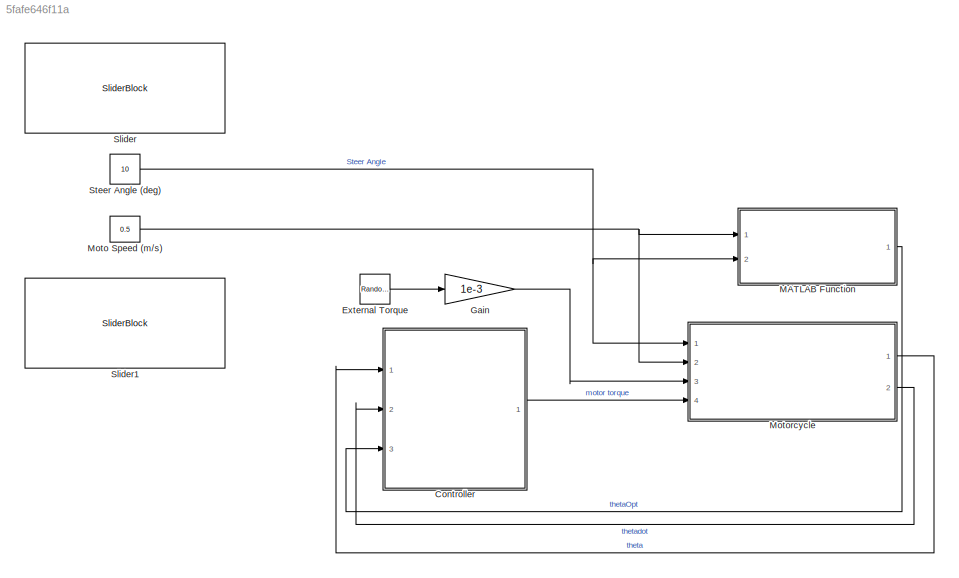
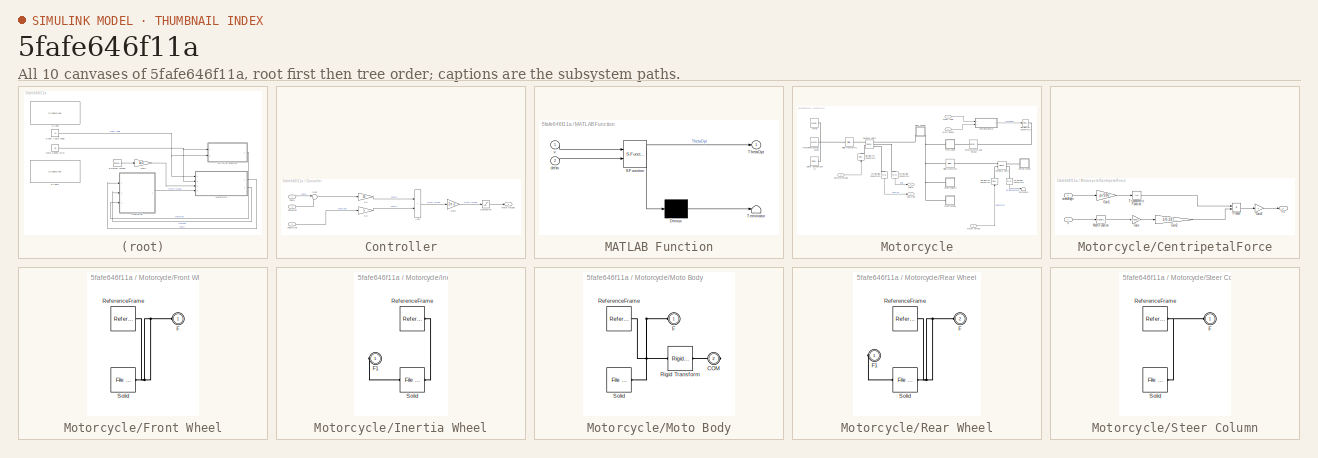
[diagram: thumbnail index - all 10 canvases of the model, root first then tree order]
MODEL slx_5fafe646f11a
KIND model
CONFIG AbsTol = auto
CONFIG EnableMultiTasking = on
CONFIG FixedStep = auto
CONFIG MaxStep = auto
CONFIG MinStep = auto
CONFIG PreLoadFcn = moto_cad_data\n\ntheta0 = 1;\nthetadot0 = 0;
CONFIG RelTol = 1e-3
CONFIG SampleTimeConstraint = Unconstrained
CONFIG SolverName = ode45
CONFIG StartTime = 0.0
CONFIG StopTime = 20
BLOCK [SubSystem] Controller
  Ports = [3, 1]
  RequestExecContextInheritance = off
BLOCK [Sum] Controller/Add
  IconShape = rectangular
  Inputs = 2
  Ports = [2, 1]
BLOCK [Gain] Controller/Gain 
  Gain = 2e-2
BLOCK [Gain] Controller/Kd
  Gain = 5
BLOCK [Gain] Controller/Kp
  Gain = 50
BLOCK [Saturate] Controller/Saturation
  LowerLimit = -0.7
  UpperLimit = 0.7
BLOCK [Sum] Controller/Sum
  Inputs = |+-
  Ports = [2, 1]
BLOCK [Inport] Controller/Theta
BLOCK [Inport] Controller/Theta Dot
  Port = 2
BLOCK [Inport] Controller/ThetaOpt
  Port = 3
BLOCK [Outport] Controller/motor torque
  VectorParamsAs1DForOutWhenUnconnected = off
BLOCK [RandomNumber] External Torque
  SampleTime = 0.1
BLOCK [Gain] Gain
  Gain = 1e-3
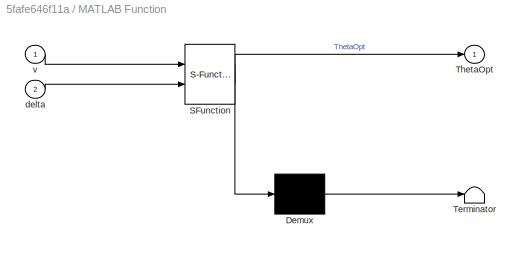
BLOCK [SubSystem] MATLAB Function
  ErrorFcn = Stateflow.Translate.translate
  PermitHierarchicalResolution = ExplicitOnly
  Ports = [2, 1]
  RequestExecContextInheritance = off
  SFBlockType = MATLAB Function
  TreatAsAtomicUnit = on
BLOCK [Demux] MATLAB Function/ Demux 
  Outputs = 1
  Ports = [1, 1]
BLOCK [S-Function] MATLAB Function/ SFunction 
  EnableBusSupport = on
  FunctionName = sf_sfun
  PortCounts = [2 2]
  Ports = [2, 2]
  SFcnIsStateOwnerBlock = off
  SFunctionDeploymentMode = off
  Tag = Stateflow S-Function 2
BLOCK [Terminator] MATLAB Function/ Terminator 
BLOCK [Outport] MATLAB Function/ThetaOpt
BLOCK [Inport] MATLAB Function/delta
  Port = 2
BLOCK [Inport] MATLAB Function/v
BLOCK [Constant] Moto Speed (m//s)
  SampleTime = -1
  Value = 0.5
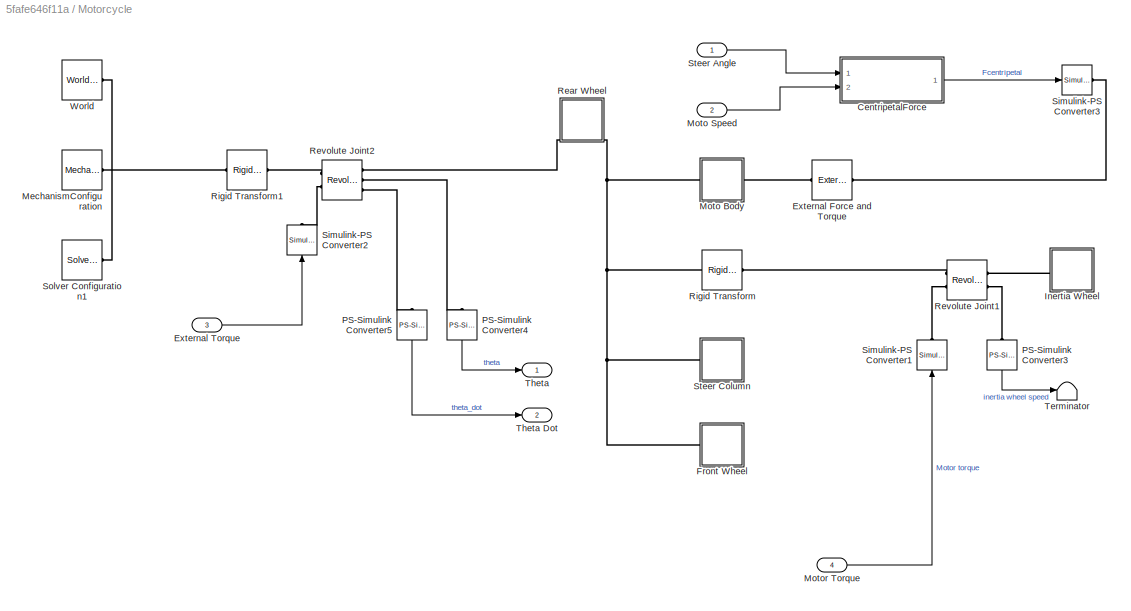
BLOCK [SubSystem] Motorcycle
  Ports = [4, 2]
  RequestExecContextInheritance = off
BLOCK [SubSystem] Motorcycle/CentripetalForce
  Ports = [2, 1]
  RequestExecContextInheritance = off
BLOCK [Outport] Motorcycle/CentripetalForce/Fc
  VectorParamsAs1DForOutWhenUnconnected = off
BLOCK [Gain] Motorcycle/CentripetalForce/Gain
  Gain = smiData_steer_column.Solid(1).mass+smiData_rear_wheel.Solid(1).mass+smiData_front_wheel.Solid(1).mass+smiData_reaction_wheel.Solid(1).mass+smiData_bike_body.Solid(1).mass
BLOCK [Gain] Motorcycle/CentripetalForce/Gain1
  Gain = pi/180
BLOCK [Gain] Motorcycle/CentripetalForce/Gain2
  Gain = 1/0.24765
BLOCK [Gain] Motorcycle/CentripetalForce/Gain3
  Gain = -1
BLOCK [Math] Motorcycle/CentripetalForce/Math Function
  Operator = magnitude^2
  Ports = [1, 1]
  SignedPower = on
BLOCK [Product] Motorcycle/CentripetalForce/Product
  Ports = [2, 1]
BLOCK [Trigonometry] Motorcycle/CentripetalForce/Trigonometric Function
  Operator = tan
  Ports = [1, 1]
BLOCK [Inport] Motorcycle/CentripetalForce/V
  Port = 2
BLOCK [Inport] Motorcycle/CentripetalForce/steerAngle
BLOCK [Reference] Motorcycle/External Force and Torque  REF=sm_lib/Forces and
Torques/External Force
and Torque
  Ports = [0, 0, 0, 0, 0, 1, 1]
  SourceBlock = sm_lib/Forces and\nTorques/External Force\nand Torque
  SourceProductBaseCode = MS
  SourceType = External Force\nand Torque
BLOCK [Inport] Motorcycle/External Torque
  Port = 3
BLOCK [SubSystem] Motorcycle/Front Wheel
  Ports = [0, 0, 0, 0, 0, 1]
  RequestExecContextInheritance = off
BLOCK [PMIOPort] Motorcycle/Front Wheel/F
  Side = Left
BLOCK [Reference] Motorcycle/Front Wheel/ReferenceFrame  REF=sm_lib/Frames and
Transforms/Reference
Frame
  Ports = [0, 0, 0, 0, 0, 0, 1]
  SourceBlock = sm_lib/Frames and\nTransforms/Reference\nFrame
  SourceProductBaseCode = MS
  SourceType = Reference\nFrame
BLOCK [Reference] Motorcycle/Front Wheel/Solid  REF=sm_lib/Body Elements/File Solid
  Ports = [0, 0, 0, 0, 0, 0, 1]
  SourceBlock = sm_lib/Body Elements/File Solid
  SourceProductBaseCode = MS
  SourceType = File Solid
BLOCK [SubSystem] Motorcycle/Inertia Wheel
  Ports = [0, 0, 0, 0, 0, 1]
  RequestExecContextInheritance = off
BLOCK [PMIOPort] Motorcycle/Inertia Wheel/F1
  Side = Left
BLOCK [Reference] Motorcycle/Inertia Wheel/ReferenceFrame  REF=sm_lib/Frames and
Transforms/Reference
Frame
  Ports = [0, 0, 0, 0, 0, 0, 1]
  SourceBlock = sm_lib/Frames and\nTransforms/Reference\nFrame
  SourceProductBaseCode = MS
  SourceType = Reference\nFrame
BLOCK [Reference] Motorcycle/Inertia Wheel/Solid  REF=sm_lib/Body Elements/File Solid
  Ports = [0, 0, 0, 0, 0, 1, 1]
  SourceBlock = sm_lib/Body Elements/File Solid
  SourceProductBaseCode = MS
  SourceType = File Solid
BLOCK [Reference] Motorcycle/MechanismConfiguration  REF=sm_lib/Utilities/Mechanism
Configuration
  Ports = [0, 0, 0, 0, 0, 0, 1]
  SourceBlock = sm_lib/Utilities/Mechanism\nConfiguration
  SourceProductBaseCode = MS
  SourceType = Mechanism\nConfiguration
BLOCK [SubSystem] Motorcycle/Moto Body
  Ports = [0, 0, 0, 0, 0, 1, 1]
  RequestExecContextInheritance = off
BLOCK [PMIOPort] Motorcycle/Moto Body/COM
  Port = 2
  Side = Right
BLOCK [PMIOPort] Motorcycle/Moto Body/F
  Side = Left
BLOCK [Reference] Motorcycle/Moto Body/ReferenceFrame  REF=sm_lib/Frames and
Transforms/Reference
Frame
  Ports = [0, 0, 0, 0, 0, 0, 1]
  SourceBlock = sm_lib/Frames and\nTransforms/Reference\nFrame
  SourceProductBaseCode = MS
  SourceType = Reference\nFrame
BLOCK [Reference] Motorcycle/Moto Body/Rigid Transform  REF=sm_lib/Frames and
Transforms/Rigid
Transform
  Ports = [0, 0, 0, 0, 0, 1, 1]
  SourceBlock = sm_lib/Frames and\nTransforms/Rigid\nTransform
  SourceProductBaseCode = MS
  SourceType = Rigid\nTransform
BLOCK [Reference] Motorcycle/Moto Body/Solid  REF=sm_lib/Body Elements/File Solid
  Ports = [0, 0, 0, 0, 0, 0, 1]
  SourceBlock = sm_lib/Body Elements/File Solid
  SourceProductBaseCode = MS
  SourceType = File Solid
BLOCK [Inport] Motorcycle/Moto Speed
  Port = 2
BLOCK [Inport] Motorcycle/Motor Torque
  Port = 4
BLOCK [Reference] Motorcycle/PS-Simulink Converter3  REF=nesl_utility/PS-Simulink
Converter
  NameLocation = right
  Ports = [0, 1, 0, 0, 0, 1]
  SourceBlock = nesl_utility/PS-Simulink\nConverter
  SourceProductBaseCode = PW,SS
  SourceType = PS-Simulink\nConverter
BLOCK [Reference] Motorcycle/PS-Simulink Converter4  REF=nesl_utility/PS-Simulink
Converter
  NameLocation = right
  Ports = [0, 1, 0, 0, 0, 1]
  SourceBlock = nesl_utility/PS-Simulink\nConverter
  SourceProductBaseCode = PW,SS
  SourceType = PS-Simulink\nConverter
BLOCK [Reference] Motorcycle/PS-Simulink Converter5  REF=nesl_utility/PS-Simulink
Converter
  NameLocation = left
  Ports = [0, 1, 0, 0, 0, 1]
  SourceBlock = nesl_utility/PS-Simulink\nConverter
  SourceProductBaseCode = PW,SS
  SourceType = PS-Simulink\nConverter
BLOCK [SubSystem] Motorcycle/Rear Wheel
  NameLocation = right
  Ports = [0, 0, 0, 0, 0, 2]
  RequestExecContextInheritance = off
BLOCK [PMIOPort] Motorcycle/Rear Wheel/F
  Port = 2
  Side = Left
BLOCK [PMIOPort] Motorcycle/Rear Wheel/F1
  Side = Left
BLOCK [Reference] Motorcycle/Rear Wheel/ReferenceFrame  REF=sm_lib/Frames and
Transforms/Reference
Frame
  Ports = [0, 0, 0, 0, 0, 0, 1]
  SourceBlock = sm_lib/Frames and\nTransforms/Reference\nFrame
  SourceProductBaseCode = MS
  SourceType = Reference\nFrame
BLOCK [Reference] Motorcycle/Rear Wheel/Solid  REF=sm_lib/Body Elements/File Solid
  Ports = [0, 0, 0, 0, 0, 1, 1]
  SourceBlock = sm_lib/Body Elements/File Solid
  SourceProductBaseCode = MS
  SourceType = File Solid
BLOCK [Reference] Motorcycle/Revolute Joint1  REF=sm_lib/Joints/Revolute Joint
  Ports = [0, 0, 0, 0, 0, 2, 2]
  SourceBlock = sm_lib/Joints/Revolute Joint
  SourceProductBaseCode = MS
  SourceType = Revolute Joint
BLOCK [Reference] Motorcycle/Revolute Joint2  REF=sm_lib/Joints/Revolute Joint
  Ports = [0, 0, 0, 0, 0, 2, 3]
  SourceBlock = sm_lib/Joints/Revolute Joint
  SourceProductBaseCode = MS
  SourceType = Revolute Joint
BLOCK [Reference] Motorcycle/Rigid Transform  REF=sm_lib/Frames and
Transforms/Rigid
Transform
  Ports = [0, 0, 0, 0, 0, 1, 1]
  SourceBlock = sm_lib/Frames and\nTransforms/Rigid\nTransform
  SourceProductBaseCode = MS
  SourceType = Rigid\nTransform
BLOCK [Reference] Motorcycle/Rigid Transform1  REF=sm_lib/Frames and
Transforms/Rigid
Transform
  Ports = [0, 0, 0, 0, 0, 1, 1]
  SourceBlock = sm_lib/Frames and\nTransforms/Rigid\nTransform
  SourceProductBaseCode = MS
  SourceType = Rigid\nTransform
BLOCK [Reference] Motorcycle/Simulink-PS Converter1  REF=nesl_utility/Simulink-PS
Converter
  NameLocation = right
  Ports = [1, 0, 0, 0, 0, 0, 1]
  SourceBlock = nesl_utility/Simulink-PS\nConverter
  SourceProductBaseCode = PW,SS
  SourceType = Simulink-PS\nConverter
BLOCK [Reference] Motorcycle/Simulink-PS Converter2  REF=nesl_utility/Simulink-PS
Converter
  NameLocation = right
  Ports = [1, 0, 0, 0, 0, 0, 1]
  SourceBlock = nesl_utility/Simulink-PS\nConverter
  SourceProductBaseCode = PW,SS
  SourceType = Simulink-PS\nConverter
BLOCK [Reference] Motorcycle/Simulink-PS Converter3  REF=nesl_utility/Simulink-PS
Converter
  Ports = [1, 0, 0, 0, 0, 0, 1]
  SourceBlock = nesl_utility/Simulink-PS\nConverter
  SourceProductBaseCode = PW,SS
  SourceType = Simulink-PS\nConverter
BLOCK [Reference] Motorcycle/Solver Configuration1  REF=nesl_utility/Solver
Configuration
  Ports = [0, 0, 0, 0, 0, 0, 1]
  SourceBlock = nesl_utility/Solver\nConfiguration
  SourceProductBaseCode = PW,SS
  SourceType = Solver\nConfiguration
BLOCK [Inport] Motorcycle/Steer Angle
BLOCK [SubSystem] Motorcycle/Steer Column
  Ports = [0, 0, 0, 0, 0, 1]
  RequestExecContextInheritance = off
BLOCK [PMIOPort] Motorcycle/Steer Column/F
  Side = Left
BLOCK [Reference] Motorcycle/Steer Column/ReferenceFrame  REF=sm_lib/Frames and
Transforms/Reference
Frame
  Ports = [0, 0, 0, 0, 0, 0, 1]
  SourceBlock = sm_lib/Frames and\nTransforms/Reference\nFrame
  SourceProductBaseCode = MS
  SourceType = Reference\nFrame
BLOCK [Reference] Motorcycle/Steer Column/Solid  REF=sm_lib/Body Elements/File Solid
  Ports = [0, 0, 0, 0, 0, 0, 1]
  SourceBlock = sm_lib/Body Elements/File Solid
  SourceProductBaseCode = MS
  SourceType = File Solid
BLOCK [Terminator] Motorcycle/Terminator
BLOCK [Outport] Motorcycle/Theta
  VectorParamsAs1DForOutWhenUnconnected = off
BLOCK [Outport] Motorcycle/Theta Dot
  Port = 2
  VectorParamsAs1DForOutWhenUnconnected = off
BLOCK [Reference] Motorcycle/World  REF=sm_lib/Frames and
Transforms/World Frame
  Ports = [0, 0, 0, 0, 0, 0, 1]
  SourceBlock = sm_lib/Frames and\nTransforms/World Frame
  SourceProductBaseCode = MS
  SourceType = World Frame
BLOCK [SliderBlock] Slider
  ScaleMax = 30
  ScaleMin = -30
BLOCK [SliderBlock] Slider1
  ScaleMax = 2
  ScaleMin = -2
BLOCK [Constant] Steer Angle (deg)
  SampleTime = -1
  Value = 10
LINE Controller/Add:1 -> Controller/Gain :1
LINE Controller/Gain :1 -> Controller/Saturation:1
LINE Controller/Kd:1 -> Controller/Add:2
LINE Controller/Kp:1 -> Controller/Add:1
LINE Controller/Saturation:1 -> Controller/motor torque:1
LINE Controller/Sum:1 -> Controller/Kp:1
LINE Controller/Theta Dot:1 -> Controller/Kd:1
LINE Controller/Theta:1 -> Controller/Sum:1
LINE Controller/ThetaOpt:1 -> Controller/Sum:2
LINE Controller:1 -> Motorcycle:4
LINE External Torque:1 -> Gain:1
LINE Gain:1 -> Motorcycle:3
LINE MATLAB Function:1 -> Controller:3
NET Moto Speed (m//s):1 -> MATLAB Function:1, Motorcycle:2
LINE Motorcycle/CentripetalForce/Gain1:1 -> Motorcycle/CentripetalForce/Trigonometric Function:1
LINE Motorcycle/CentripetalForce/Gain2:1 -> Motorcycle/CentripetalForce/Product:2
LINE Motorcycle/CentripetalForce/Gain3:1 -> Motorcycle/CentripetalForce/Fc:1
LINE Motorcycle/CentripetalForce/Gain:1 -> Motorcycle/CentripetalForce/Gain2:1
LINE Motorcycle/CentripetalForce/Math Function:1 -> Motorcycle/CentripetalForce/Gain:1
LINE Motorcycle/CentripetalForce/Product:1 -> Motorcycle/CentripetalForce/Gain3:1
LINE Motorcycle/CentripetalForce/Trigonometric Function:1 -> Motorcycle/CentripetalForce/Product:1
LINE Motorcycle/CentripetalForce/V:1 -> Motorcycle/CentripetalForce/Math Function:1
LINE Motorcycle/CentripetalForce/steerAngle:1 -> Motorcycle/CentripetalForce/Gain1:1
LINE Motorcycle/CentripetalForce:1 -> Motorcycle/Simulink-PS Converter3:1
LINE Motorcycle/External Torque:1 -> Motorcycle/Simulink-PS Converter2:1
LINE Motorcycle/Moto Speed:1 -> Motorcycle/CentripetalForce:2
LINE Motorcycle/Motor Torque:1 -> Motorcycle/Simulink-PS Converter1:1
LINE Motorcycle/PS-Simulink Converter3:1 -> Motorcycle/Terminator:1
LINE Motorcycle/PS-Simulink Converter4:1 -> Motorcycle/Theta:1
LINE Motorcycle/PS-Simulink Converter5:1 -> Motorcycle/Theta Dot:1
LINE Motorcycle/Steer Angle:1 -> Motorcycle/CentripetalForce:1
LINE Motorcycle:1 -> Controller:1
LINE Motorcycle:2 -> Controller:2
NET Steer Angle (deg):1 -> MATLAB Function:2, Motorcycle:1
PLINE Motorcycle/External Force and Torque:LConn1 -- Motorcycle/Simulink-PS Converter3:RConn1
PLINE Motorcycle/External Force and Torque:RConn1 -- Motorcycle/Moto Body:RConn1
PNET net1: Motorcycle/Front Wheel/F:RConn1 -- Motorcycle/Front Wheel/ReferenceFrame:RConn1 -- Motorcycle/Front Wheel/Solid:RConn1
PNET net2: Motorcycle/Front Wheel:LConn1 -- Motorcycle/Moto Body:LConn1 -- Motorcycle/Rear Wheel:LConn2 -- Motorcycle/Rigid Transform:LConn1 -- Motorcycle/Steer Column:LConn1
PLINE Motorcycle/Inertia Wheel/F1:RConn1 -- Motorcycle/Inertia Wheel/Solid:LConn1
PLINE Motorcycle/Inertia Wheel/ReferenceFrame:RConn1 -- Motorcycle/Inertia Wheel/Solid:RConn1
PLINE Motorcycle/Inertia Wheel:LConn1 -- Motorcycle/Revolute Joint1:RConn1
PNET net3: Motorcycle/MechanismConfiguration:RConn1 -- Motorcycle/Rigid Transform1:LConn1 -- Motorcycle/Solver Configuration1:RConn1 -- Motorcycle/World:RConn1
PLINE Motorcycle/Moto Body/COM:RConn1 -- Motorcycle/Moto Body/Rigid Transform:RConn1
PNET net4: Motorcycle/Moto Body/F:RConn1 -- Motorcycle/Moto Body/ReferenceFrame:RConn1 -- Motorcycle/Moto Body/Rigid Transform:LConn1 -- Motorcycle/Moto Body/Solid:RConn1
PLINE Motorcycle/PS-Simulink Converter3:LConn1 -- Motorcycle/Revolute Joint1:RConn2
PLINE Motorcycle/PS-Simulink Converter4:LConn1 -- Motorcycle/Revolute Joint2:RConn2
PLINE Motorcycle/PS-Simulink Converter5:LConn1 -- Motorcycle/Revolute Joint2:RConn3
PLINE Motorcycle/Rear Wheel/F1:RConn1 -- Motorcycle/Rear Wheel/Solid:LConn1
PNET net5: Motorcycle/Rear Wheel/F:RConn1 -- Motorcycle/Rear Wheel/ReferenceFrame:RConn1 -- Motorcycle/Rear Wheel/Solid:RConn1
PLINE Motorcycle/Rear Wheel:LConn1 -- Motorcycle/Revolute Joint2:RConn1
PLINE Motorcycle/Revolute Joint1:LConn1 -- Motorcycle/Rigid Transform:RConn1
PLINE Motorcycle/Revolute Joint1:LConn2 -- Motorcycle/Simulink-PS Converter1:RConn1
PLINE Motorcycle/Revolute Joint2:LConn1 -- Motorcycle/Rigid Transform1:RConn1
PLINE Motorcycle/Revolute Joint2:LConn2 -- Motorcycle/Simulink-PS Converter2:RConn1
PNET net6: Motorcycle/Steer Column/F:RConn1 -- Motorcycle/Steer Column/ReferenceFrame:RConn1 -- Motorcycle/Steer Column/Solid:RConn1
note: NET lines group one-source signal fan-out (src -> all destinations, sorted); 1:1 wires keep LINE; PNET lines group multi-terminal physical nets as a canonical sorted terminal list (undirected conserving connections); 2-terminal nets keep the pairwise PLINE form
CHART MATLAB Function states=1 transitions=1
  STATE_LABEL 'eML_blk_kernel()'
  STATE_LABEL 'SCRIPT:\nfunction ThetaOpt = ThetaOpt_fcn(v,delta)\ng=9.81;\nL_FR=0.25;\nThetaOpt =atand((v^2*delta)/(g*L_FR));\n'
CHART  states=0 transitions=0
